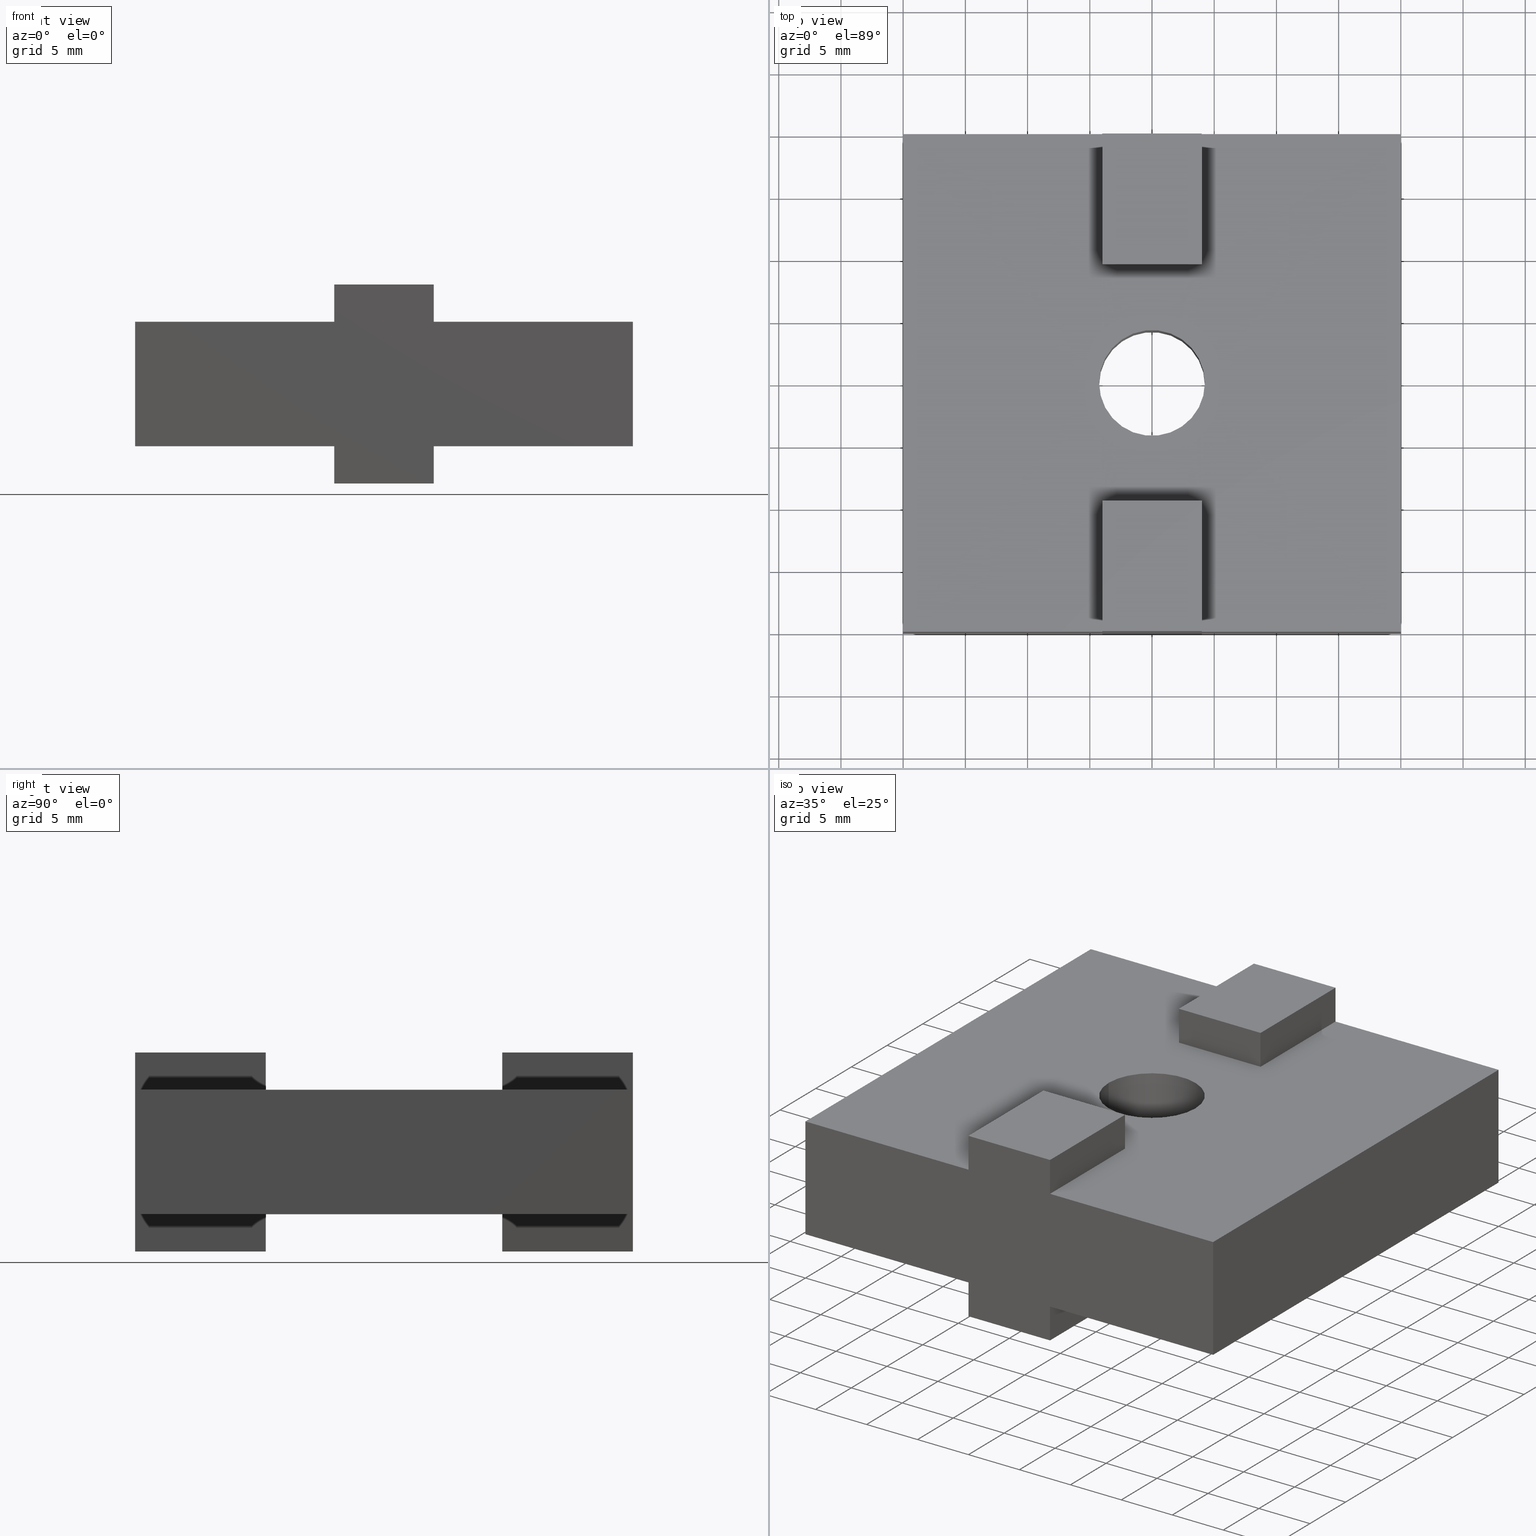
[diagram: canonical four-view strip — front | top / right | iso, engineering-drawing reading convention]
A machine part, canonical four-view strip (front | top / right | iso — engineering-drawing reading convention). The complete STEP part file that produces these views, byte-faithful:
ISO-10303-21;
HEADER;
/****************************************************************
 * Generated by software with PDE/Lib inside                    *
 * PDElib Version v4.4, created Mon 02/23/2004                  *
 * International Technegroup Inc. (www.iti-oh.com)              *
 ****************************************************************/
FILE_DESCRIPTION(('STEP AP203'),'2;1');
FILE_NAME('30.021.00.stp','2011-02-14T10:50:21',(''),(''),'2009.3.110','THINKDESIGN','');
FILE_SCHEMA(('CONFIG_CONTROL_DESIGN'));
ENDSEC;
DATA;
#2=CARTESIAN_POINT('',(-7.105427E-015,20.0,2.999999989999999));
#3=DIRECTION('',(0.0,0.0,1.0));
#4=DIRECTION('',(0.0,1.0,0.0));
#5=AXIS2_PLACEMENT_3D('',#2,#3,#4);
#6=CYLINDRICAL_SURFACE('',#5,4.250000000000000);
#7=CARTESIAN_POINT('',(-4.250000000000004,20.0,3.0));
#8=VERTEX_POINT('',#7);
#9=CARTESIAN_POINT('',(4.250000000000000,20.0,3.0));
#10=VERTEX_POINT('',#9);
#11=CARTESIAN_POINT('',(-3.552714E-015,20.0,3.0));
#12=DIRECTION('',(0.0,0.0,1.0));
#13=DIRECTION('',(1.0,0.0,0.0));
#14=AXIS2_PLACEMENT_3D('',#11,#12,#13);
#15=CIRCLE('',#14,4.250000000000000);
#16=EDGE_CURVE('',#8,#10,#15,.T.);
#17=ORIENTED_EDGE('',*,*,#16,.F.);
#18=CARTESIAN_POINT('',(-4.250000000000004,20.0,13.0));
#19=VERTEX_POINT('',#18);
#20=CARTESIAN_POINT('',(-4.250000000000004,20.0,3.0));
#21=DIRECTION('',(0.0,0.0,1.0));
#22=VECTOR('',#21,10.0);
#23=LINE('',#20,#22);
#24=EDGE_CURVE('',#8,#19,#23,.T.);
#25=ORIENTED_EDGE('',*,*,#24,.T.);
#26=CARTESIAN_POINT('',(4.250000000000000,20.0,13.0));
#27=VERTEX_POINT('',#26);
#28=CARTESIAN_POINT('',(-3.552714E-015,20.0,13.0));
#29=DIRECTION('',(0.0,0.0,1.0));
#30=DIRECTION('',(0.0,-1.0,0.0));
#31=AXIS2_PLACEMENT_3D('',#28,#29,#30);
#32=CIRCLE('',#31,4.250000000000000);
#33=EDGE_CURVE('',#19,#27,#32,.T.);
#34=ORIENTED_EDGE('',*,*,#33,.T.);
#35=CARTESIAN_POINT('',(4.250000000000000,20.0,3.0));
#36=DIRECTION('',(0.0,0.0,1.0));
#37=VECTOR('',#36,10.0);
#38=LINE('',#35,#37);
#39=EDGE_CURVE('',#10,#27,#38,.T.);
#40=ORIENTED_EDGE('',*,*,#39,.F.);
#41=EDGE_LOOP('',(#17,#25,#34,#40));
#42=FACE_OUTER_BOUND('',#41,.T.);
#43=ADVANCED_FACE('',(#42),#6,.F.);
#44=CARTESIAN_POINT('',(4.0,-0.524999999999999,-0.150000000000000));
#45=DIRECTION('',(-1.0,0.0,0.0));
#46=DIRECTION('',(0.0,0.0,1.0));
#47=AXIS2_PLACEMENT_3D('',#44,#45,#46);
#48=PLANE('',#47);
#49=CARTESIAN_POINT('',(4.0,10.500000000000014,0.0));
#50=VERTEX_POINT('',#49);
#51=CARTESIAN_POINT('',(4.0,0.0,0.0));
#52=VERTEX_POINT('',#51);
#53=CARTESIAN_POINT('',(4.0,10.500000000000014,0.0));
#54=DIRECTION('',(0.0,-1.0,0.0));
#55=VECTOR('',#54,10.500000000000014);
#56=LINE('',#53,#55);
#57=EDGE_CURVE('',#50,#52,#56,.T.);
#58=ORIENTED_EDGE('',*,*,#57,.F.);
#59=CARTESIAN_POINT('',(4.0,10.500000000000014,3.0));
#60=VERTEX_POINT('',#59);
#61=CARTESIAN_POINT('',(4.0,10.500000000000014,3.0));
#62=DIRECTION('',(0.0,0.0,-1.0));
#63=VECTOR('',#62,3.0);
#64=LINE('',#61,#63);
#65=EDGE_CURVE('',#60,#50,#64,.T.);
#66=ORIENTED_EDGE('',*,*,#65,.F.);
#67=CARTESIAN_POINT('',(4.0,0.0,3.0));
#68=VERTEX_POINT('',#67);
#69=CARTESIAN_POINT('',(4.0,10.500000000000014,3.0));
#70=DIRECTION('',(0.0,-1.0,0.0));
#71=VECTOR('',#70,10.500000000000014);
#72=LINE('',#69,#71);
#73=EDGE_CURVE('',#60,#68,#72,.T.);
#74=ORIENTED_EDGE('',*,*,#73,.T.);
#75=CARTESIAN_POINT('',(4.0,0.0,0.0));
#76=DIRECTION('',(0.0,0.0,1.0));
#77=VECTOR('',#76,3.0);
#78=LINE('',#75,#77);
#79=EDGE_CURVE('',#52,#68,#78,.T.);
#80=ORIENTED_EDGE('',*,*,#79,.F.);
#81=EDGE_LOOP('',(#58,#66,#74,#80));
#82=FACE_OUTER_BOUND('',#81,.T.);
#83=ADVANCED_FACE('',(#82),#48,.F.);
#84=CARTESIAN_POINT('',(-4.000000000000004,-0.524999999999999,3.150000000000000));
#85=DIRECTION('',(1.0,0.0,0.0));
#86=DIRECTION('',(0.0,0.0,-1.0));
#87=AXIS2_PLACEMENT_3D('',#84,#85,#86);
#88=PLANE('',#87);
#89=CARTESIAN_POINT('',(-4.000000000000004,0.0,3.0));
#90=VERTEX_POINT('',#89);
#91=CARTESIAN_POINT('',(-4.000000000000004,10.500000000000014,3.0));
#92=VERTEX_POINT('',#91);
#93=CARTESIAN_POINT('',(-4.000000000000004,0.0,3.0));
#94=DIRECTION('',(0.0,1.0,0.0));
#95=VECTOR('',#94,10.500000000000014);
#96=LINE('',#93,#95);
#97=EDGE_CURVE('',#90,#92,#96,.T.);
#98=ORIENTED_EDGE('',*,*,#97,.T.);
#99=CARTESIAN_POINT('',(-4.000000000000004,10.500000000000014,0.0));
#100=VERTEX_POINT('',#99);
#101=CARTESIAN_POINT('',(-4.000000000000004,10.500000000000014,3.0));
#102=DIRECTION('',(0.0,0.0,-1.0));
#103=VECTOR('',#102,3.0);
#104=LINE('',#101,#103);
#105=EDGE_CURVE('',#92,#100,#104,.T.);
#106=ORIENTED_EDGE('',*,*,#105,.T.);
#107=CARTESIAN_POINT('',(-4.000000000000004,0.0,0.0));
#108=VERTEX_POINT('',#107);
#109=CARTESIAN_POINT('',(-4.000000000000004,0.0,0.0));
#110=DIRECTION('',(0.0,1.0,0.0));
#111=VECTOR('',#110,10.500000000000014);
#112=LINE('',#109,#111);
#113=EDGE_CURVE('',#108,#100,#112,.T.);
#114=ORIENTED_EDGE('',*,*,#113,.F.);
#115=CARTESIAN_POINT('',(-4.000000000000004,0.0,0.0));
#116=DIRECTION('',(0.0,0.0,1.0));
#117=VECTOR('',#116,3.0);
#118=LINE('',#115,#117);
#119=EDGE_CURVE('',#108,#90,#118,.T.);
#120=ORIENTED_EDGE('',*,*,#119,.T.);
#121=EDGE_LOOP('',(#98,#106,#114,#120));
#122=FACE_OUTER_BOUND('',#121,.T.);
#123=ADVANCED_FACE('',(#122),#88,.F.);
#124=CARTESIAN_POINT('',(4.399999999999999,-0.524999999999999,0.0));
#125=DIRECTION('',(0.0,0.0,-1.0));
#126=DIRECTION('',(-1.0,0.0,0.0));
#127=AXIS2_PLACEMENT_3D('',#124,#125,#126);
#128=PLANE('',#127);
#129=CARTESIAN_POINT('',(4.0,10.500000000000014,0.0));
#130=DIRECTION('',(-1.0,0.0,0.0));
#131=VECTOR('',#130,8.000000000000004);
#132=LINE('',#129,#131);
#133=EDGE_CURVE('',#50,#100,#132,.T.);
#134=ORIENTED_EDGE('',*,*,#133,.F.);
#135=ORIENTED_EDGE('',*,*,#57,.T.);
#136=CARTESIAN_POINT('',(4.0,0.0,0.0));
#137=DIRECTION('',(-1.0,0.0,0.0));
#138=VECTOR('',#137,8.000000000000004);
#139=LINE('',#136,#138);
#140=EDGE_CURVE('',#52,#108,#139,.T.);
#141=ORIENTED_EDGE('',*,*,#140,.T.);
#142=ORIENTED_EDGE('',*,*,#113,.T.);
#143=EDGE_LOOP('',(#134,#135,#141,#142));
#144=FACE_OUTER_BOUND('',#143,.T.);
#145=ADVANCED_FACE('',(#144),#128,.T.);
#146=CARTESIAN_POINT('',(4.0,-0.524999999999999,12.849999999999996));
#147=DIRECTION('',(-1.0,0.0,0.0));
#148=DIRECTION('',(0.0,0.0,1.0));
#149=AXIS2_PLACEMENT_3D('',#146,#147,#148);
#150=PLANE('',#149);
#151=CARTESIAN_POINT('',(4.0,0.0,13.0));
#152=VERTEX_POINT('',#151);
#153=CARTESIAN_POINT('',(4.0,10.500000000000014,12.999999999999996));
#154=VERTEX_POINT('',#153);
#155=CARTESIAN_POINT('',(4.0,0.0,13.0));
#156=DIRECTION('',(0.0,1.0,0.0));
#157=VECTOR('',#156,10.500000000000014);
#158=LINE('',#155,#157);
#159=EDGE_CURVE('',#152,#154,#158,.T.);
#160=ORIENTED_EDGE('',*,*,#159,.T.);
#161=CARTESIAN_POINT('',(4.0,10.500000000000014,16.0));
#162=VERTEX_POINT('',#161);
#163=CARTESIAN_POINT('',(4.0,10.500000000000014,12.999999999999996));
#164=DIRECTION('',(0.0,0.0,1.0));
#165=VECTOR('',#164,3.000000000000004);
#166=LINE('',#163,#165);
#167=EDGE_CURVE('',#154,#162,#166,.T.);
#168=ORIENTED_EDGE('',*,*,#167,.T.);
#169=CARTESIAN_POINT('',(4.0,0.0,16.000000000000007));
#170=VERTEX_POINT('',#169);
#171=CARTESIAN_POINT('',(4.0,0.0,16.000000000000007));
#172=DIRECTION('',(0.0,1.0,0.0));
#173=VECTOR('',#172,10.500000000000014);
#174=LINE('',#171,#173);
#175=EDGE_CURVE('',#170,#162,#174,.T.);
#176=ORIENTED_EDGE('',*,*,#175,.F.);
#177=CARTESIAN_POINT('',(4.0,0.0,16.000000000000007));
#178=DIRECTION('',(0.0,0.0,-1.0));
#179=VECTOR('',#178,3.000000000000005);
#180=LINE('',#177,#179);
#181=EDGE_CURVE('',#170,#152,#180,.T.);
#182=ORIENTED_EDGE('',*,*,#181,.T.);
#183=EDGE_LOOP('',(#160,#168,#176,#182));
#184=FACE_OUTER_BOUND('',#183,.T.);
#185=ADVANCED_FACE('',(#184),#150,.F.);
#186=CARTESIAN_POINT('',(-4.000000000000004,-0.524999999999999,16.150000000000006));
#187=DIRECTION('',(1.0,0.0,0.0));
#188=DIRECTION('',(0.0,0.0,-1.0));
#189=AXIS2_PLACEMENT_3D('',#186,#187,#188);
#190=PLANE('',#189);
#191=CARTESIAN_POINT('',(-4.000000000000004,10.500000000000014,16.0));
#192=VERTEX_POINT('',#191);
#193=CARTESIAN_POINT('',(-4.000000000000004,0.0,16.000000000000007));
#194=VERTEX_POINT('',#193);
#195=CARTESIAN_POINT('',(-4.000000000000004,10.500000000000014,16.000000000000007));
#196=DIRECTION('',(0.0,-1.0,0.0));
#197=VECTOR('',#196,10.500000000000014);
#198=LINE('',#195,#197);
#199=EDGE_CURVE('',#192,#194,#198,.T.);
#200=ORIENTED_EDGE('',*,*,#199,.F.);
#201=CARTESIAN_POINT('',(-4.000000000000004,10.500000000000014,12.999999999999996));
#202=VERTEX_POINT('',#201);
#203=CARTESIAN_POINT('',(-4.000000000000004,10.500000000000014,12.999999999999996));
#204=DIRECTION('',(0.0,0.0,1.0));
#205=VECTOR('',#204,3.000000000000004);
#206=LINE('',#203,#205);
#207=EDGE_CURVE('',#202,#192,#206,.T.);
#208=ORIENTED_EDGE('',*,*,#207,.F.);
#209=CARTESIAN_POINT('',(-4.000000000000004,0.0,13.0));
#210=VERTEX_POINT('',#209);
#211=CARTESIAN_POINT('',(-4.000000000000004,10.500000000000014,13.0));
#212=DIRECTION('',(0.0,-1.0,0.0));
#213=VECTOR('',#212,10.500000000000014);
#214=LINE('',#211,#213);
#215=EDGE_CURVE('',#202,#210,#214,.T.);
#216=ORIENTED_EDGE('',*,*,#215,.T.);
#217=CARTESIAN_POINT('',(-4.000000000000004,0.0,16.000000000000007));
#218=DIRECTION('',(0.0,0.0,-1.0));
#219=VECTOR('',#218,3.000000000000005);
#220=LINE('',#217,#219);
#221=EDGE_CURVE('',#194,#210,#220,.T.);
#222=ORIENTED_EDGE('',*,*,#221,.F.);
#223=EDGE_LOOP('',(#200,#208,#216,#222));
#224=FACE_OUTER_BOUND('',#223,.T.);
#225=ADVANCED_FACE('',(#224),#190,.F.);
#226=CARTESIAN_POINT('',(-4.400000000000002,-0.524999999999999,16.000000000000007));
#227=DIRECTION('',(0.0,0.0,1.0));
#228=DIRECTION('',(1.0,0.0,0.0));
#229=AXIS2_PLACEMENT_3D('',#226,#227,#228);
#230=PLANE('',#229);
#231=CARTESIAN_POINT('',(-4.000000000000004,10.500000000000014,16.0));
#232=DIRECTION('',(1.0,0.0,0.0));
#233=VECTOR('',#232,8.000000000000004);
#234=LINE('',#231,#233);
#235=EDGE_CURVE('',#192,#162,#234,.T.);
#236=ORIENTED_EDGE('',*,*,#235,.F.);
#237=ORIENTED_EDGE('',*,*,#199,.T.);
#238=CARTESIAN_POINT('',(-4.000000000000004,0.0,16.000000000000007));
#239=DIRECTION('',(1.0,0.0,0.0));
#240=VECTOR('',#239,8.000000000000004);
#241=LINE('',#238,#240);
#242=EDGE_CURVE('',#194,#170,#241,.T.);
#243=ORIENTED_EDGE('',*,*,#242,.T.);
#244=ORIENTED_EDGE('',*,*,#175,.T.);
#245=EDGE_LOOP('',(#236,#237,#243,#244));
#246=FACE_OUTER_BOUND('',#245,.T.);
#247=ADVANCED_FACE('',(#246),#230,.T.);
#248=CARTESIAN_POINT('',(-22.000000000000021,-2.0,3.0));
#249=DIRECTION('',(0.0,0.0,1.0));
#250=DIRECTION('',(1.0,0.0,0.0));
#251=AXIS2_PLACEMENT_3D('',#248,#249,#250);
#252=PLANE('',#251);
#253=ORIENTED_EDGE('',*,*,#97,.F.);
#254=CARTESIAN_POINT('',(-20.000000000000021,0.0,3.0));
#255=VERTEX_POINT('',#254);
#256=CARTESIAN_POINT('',(-20.000000000000021,0.0,3.0));
#257=DIRECTION('',(1.0,0.0,0.0));
#258=VECTOR('',#257,16.000000000000014);
#259=LINE('',#256,#258);
#260=EDGE_CURVE('',#255,#90,#259,.T.);
#261=ORIENTED_EDGE('',*,*,#260,.F.);
#262=CARTESIAN_POINT('',(-20.000000000000021,40.0,3.0));
#263=VERTEX_POINT('',#262);
#264=CARTESIAN_POINT('',(-20.000000000000021,40.0,3.0));
#265=DIRECTION('',(0.0,-1.0,0.0));
#266=VECTOR('',#265,40.0);
#267=LINE('',#264,#266);
#268=EDGE_CURVE('',#263,#255,#267,.T.);
#269=ORIENTED_EDGE('',*,*,#268,.F.);
#270=CARTESIAN_POINT('',(-4.000000000000004,40.0,3.0));
#271=VERTEX_POINT('',#270);
#272=CARTESIAN_POINT('',(-4.000000000000004,40.0,3.0));
#273=DIRECTION('',(-1.0,0.0,0.0));
#274=VECTOR('',#273,16.000000000000014);
#275=LINE('',#272,#274);
#276=EDGE_CURVE('',#271,#263,#275,.T.);
#277=ORIENTED_EDGE('',*,*,#276,.F.);
#278=CARTESIAN_POINT('',(-4.000000000000004,29.500000000000000,3.0));
#279=VERTEX_POINT('',#278);
#280=CARTESIAN_POINT('',(-4.000000000000004,29.500000000000000,3.0));
#281=DIRECTION('',(0.0,1.0,0.0));
#282=VECTOR('',#281,10.500000000000000);
#283=LINE('',#280,#282);
#284=EDGE_CURVE('',#279,#271,#283,.T.);
#285=ORIENTED_EDGE('',*,*,#284,.F.);
#286=CARTESIAN_POINT('',(4.0,29.500000000000000,3.0));
#287=VERTEX_POINT('',#286);
#288=CARTESIAN_POINT('',(-4.000000000000004,29.500000000000000,3.0));
#289=DIRECTION('',(1.0,0.0,0.0));
#290=VECTOR('',#289,8.000000000000004);
#291=LINE('',#288,#290);
#292=EDGE_CURVE('',#279,#287,#291,.T.);
#293=ORIENTED_EDGE('',*,*,#292,.T.);
#294=CARTESIAN_POINT('',(4.0,40.0,3.0));
#295=VERTEX_POINT('',#294);
#296=CARTESIAN_POINT('',(4.0,40.0,3.0));
#297=DIRECTION('',(0.0,-1.0,0.0));
#298=VECTOR('',#297,10.499999999999993);
#299=LINE('',#296,#298);
#300=EDGE_CURVE('',#295,#287,#299,.T.);
#301=ORIENTED_EDGE('',*,*,#300,.F.);
#302=CARTESIAN_POINT('',(19.999999999999993,40.0,3.0));
#303=VERTEX_POINT('',#302);
#304=CARTESIAN_POINT('',(19.999999999999993,40.0,3.0));
#305=DIRECTION('',(-1.0,0.0,0.0));
#306=VECTOR('',#305,15.999999999999993);
#307=LINE('',#304,#306);
#308=EDGE_CURVE('',#303,#295,#307,.T.);
#309=ORIENTED_EDGE('',*,*,#308,.F.);
#310=CARTESIAN_POINT('',(19.999999999999993,0.0,3.0));
#311=VERTEX_POINT('',#310);
#312=CARTESIAN_POINT('',(19.999999999999993,0.0,3.0));
#313=DIRECTION('',(0.0,1.0,0.0));
#314=VECTOR('',#313,40.0);
#315=LINE('',#312,#314);
#316=EDGE_CURVE('',#311,#303,#315,.T.);
#317=ORIENTED_EDGE('',*,*,#316,.F.);
#318=CARTESIAN_POINT('',(4.0,0.0,3.0));
#319=DIRECTION('',(1.0,0.0,0.0));
#320=VECTOR('',#319,15.999999999999993);
#321=LINE('',#318,#320);
#322=EDGE_CURVE('',#68,#311,#321,.T.);
#323=ORIENTED_EDGE('',*,*,#322,.F.);
#324=ORIENTED_EDGE('',*,*,#73,.F.);
#325=CARTESIAN_POINT('',(4.0,10.500000000000014,3.0));
#326=DIRECTION('',(-1.0,0.0,0.0));
#327=VECTOR('',#326,8.000000000000004);
#328=LINE('',#325,#327);
#329=EDGE_CURVE('',#60,#92,#328,.T.);
#330=ORIENTED_EDGE('',*,*,#329,.T.);
#331=EDGE_LOOP('',(#253,#261,#269,#277,#285,#293,#301,#309,#317,#323,#324,#330));
#332=FACE_OUTER_BOUND('',#331,.T.);
#333=CARTESIAN_POINT('',(-3.552714E-015,20.0,3.0));
#334=DIRECTION('',(0.0,0.0,1.0));
#335=DIRECTION('',(1.0,0.0,0.0));
#336=AXIS2_PLACEMENT_3D('',#333,#334,#335);
#337=CIRCLE('',#336,4.250000000000000);
#338=EDGE_CURVE('',#10,#8,#337,.T.);
#339=ORIENTED_EDGE('',*,*,#338,.T.);
#340=ORIENTED_EDGE('',*,*,#16,.T.);
#341=EDGE_LOOP('',(#339,#340));
#342=FACE_BOUND('',#341,.T.);
#343=ADVANCED_FACE('',(#332,#342),#252,.F.);
#344=CARTESIAN_POINT('',(-20.000000000000021,-2.0,13.500000000000000));
#345=DIRECTION('',(1.0,0.0,0.0));
#346=DIRECTION('',(0.0,0.0,-1.0));
#347=AXIS2_PLACEMENT_3D('',#344,#345,#346);
#348=PLANE('',#347);
#349=ORIENTED_EDGE('',*,*,#268,.T.);
#350=CARTESIAN_POINT('',(-20.000000000000021,0.0,13.0));
#351=VERTEX_POINT('',#350);
#352=CARTESIAN_POINT('',(-20.000000000000021,0.0,13.0));
#353=DIRECTION('',(0.0,0.0,-1.0));
#354=VECTOR('',#353,10.0);
#355=LINE('',#352,#354);
#356=EDGE_CURVE('',#351,#255,#355,.T.);
#357=ORIENTED_EDGE('',*,*,#356,.F.);
#358=CARTESIAN_POINT('',(-20.000000000000021,40.0,13.0));
#359=VERTEX_POINT('',#358);
#360=CARTESIAN_POINT('',(-20.000000000000021,40.0,13.0));
#361=DIRECTION('',(0.0,-1.0,0.0));
#362=VECTOR('',#361,40.0);
#363=LINE('',#360,#362);
#364=EDGE_CURVE('',#359,#351,#363,.T.);
#365=ORIENTED_EDGE('',*,*,#364,.F.);
#366=CARTESIAN_POINT('',(-20.000000000000021,40.0,13.0));
#367=DIRECTION('',(0.0,0.0,-1.0));
#368=VECTOR('',#367,10.0);
#369=LINE('',#366,#368);
#370=EDGE_CURVE('',#359,#263,#369,.T.);
#371=ORIENTED_EDGE('',*,*,#370,.T.);
#372=EDGE_LOOP('',(#349,#357,#365,#371));
#373=FACE_OUTER_BOUND('',#372,.T.);
#374=ADVANCED_FACE('',(#373),#348,.F.);
#375=CARTESIAN_POINT('',(-22.000000000000021,0.0,-0.800000000000001));
#376=DIRECTION('',(0.0,1.0,0.0));
#377=DIRECTION('',(0.0,0.0,1.0));
#378=AXIS2_PLACEMENT_3D('',#375,#376,#377);
#379=PLANE('',#378);
#380=ORIENTED_EDGE('',*,*,#260,.T.);
#381=ORIENTED_EDGE('',*,*,#119,.F.);
#382=ORIENTED_EDGE('',*,*,#140,.F.);
#383=ORIENTED_EDGE('',*,*,#79,.T.);
#384=ORIENTED_EDGE('',*,*,#322,.T.);
#385=CARTESIAN_POINT('',(19.999999999999993,0.0,13.0));
#386=VERTEX_POINT('',#385);
#387=CARTESIAN_POINT('',(19.999999999999993,0.0,13.0));
#388=DIRECTION('',(0.0,0.0,-1.0));
#389=VECTOR('',#388,10.0);
#390=LINE('',#387,#389);
#391=EDGE_CURVE('',#386,#311,#390,.T.);
#392=ORIENTED_EDGE('',*,*,#391,.F.);
#393=CARTESIAN_POINT('',(4.0,0.0,13.0));
#394=DIRECTION('',(1.0,0.0,0.0));
#395=VECTOR('',#394,15.999999999999993);
#396=LINE('',#393,#395);
#397=EDGE_CURVE('',#152,#386,#396,.T.);
#398=ORIENTED_EDGE('',*,*,#397,.F.);
#399=ORIENTED_EDGE('',*,*,#181,.F.);
#400=ORIENTED_EDGE('',*,*,#242,.F.);
#401=ORIENTED_EDGE('',*,*,#221,.T.);
#402=CARTESIAN_POINT('',(-20.000000000000021,0.0,13.0));
#403=DIRECTION('',(1.0,0.0,0.0));
#404=VECTOR('',#403,16.000000000000014);
#405=LINE('',#402,#404);
#406=EDGE_CURVE('',#351,#210,#405,.T.);
#407=ORIENTED_EDGE('',*,*,#406,.F.);
#408=ORIENTED_EDGE('',*,*,#356,.T.);
#409=EDGE_LOOP('',(#380,#381,#382,#383,#384,#392,#398,#399,#400,#401,#407,#408));
#410=FACE_OUTER_BOUND('',#409,.T.);
#411=ADVANCED_FACE('',(#410),#379,.F.);
#412=CARTESIAN_POINT('',(19.999999999999993,-2.0,2.500000000000000));
#413=DIRECTION('',(-1.0,0.0,0.0));
#414=DIRECTION('',(0.0,0.0,1.0));
#415=AXIS2_PLACEMENT_3D('',#412,#413,#414);
#416=PLANE('',#415);
#417=ORIENTED_EDGE('',*,*,#316,.T.);
#418=CARTESIAN_POINT('',(19.999999999999993,40.0,13.0));
#419=VERTEX_POINT('',#418);
#420=CARTESIAN_POINT('',(19.999999999999993,40.0,13.0));
#421=DIRECTION('',(0.0,0.0,-1.0));
#422=VECTOR('',#421,10.0);
#423=LINE('',#420,#422);
#424=EDGE_CURVE('',#419,#303,#423,.T.);
#425=ORIENTED_EDGE('',*,*,#424,.F.);
#426=CARTESIAN_POINT('',(19.999999999999993,0.0,13.0));
#427=DIRECTION('',(0.0,1.0,0.0));
#428=VECTOR('',#427,40.0);
#429=LINE('',#426,#428);
#430=EDGE_CURVE('',#386,#419,#429,.T.);
#431=ORIENTED_EDGE('',*,*,#430,.F.);
#432=ORIENTED_EDGE('',*,*,#391,.T.);
#433=EDGE_LOOP('',(#417,#425,#431,#432));
#434=FACE_OUTER_BOUND('',#433,.T.);
#435=ADVANCED_FACE('',(#434),#416,.F.);
#436=CARTESIAN_POINT('',(-22.000000000000021,40.0,16.800000000000004));
#437=DIRECTION('',(0.0,-1.0,0.0));
#438=DIRECTION('',(0.0,0.0,-1.0));
#439=AXIS2_PLACEMENT_3D('',#436,#437,#438);
#440=PLANE('',#439);
#441=ORIENTED_EDGE('',*,*,#308,.T.);
#442=CARTESIAN_POINT('',(4.0,40.0,0.0));
#443=VERTEX_POINT('',#442);
#444=CARTESIAN_POINT('',(4.0,40.0,0.0));
#445=DIRECTION('',(0.0,0.0,1.0));
#446=VECTOR('',#445,3.0);
#447=LINE('',#444,#446);
#448=EDGE_CURVE('',#443,#295,#447,.T.);
#449=ORIENTED_EDGE('',*,*,#448,.F.);
#450=CARTESIAN_POINT('',(-4.000000000000004,40.0,0.0));
#451=VERTEX_POINT('',#450);
#452=CARTESIAN_POINT('',(-4.000000000000004,40.0,0.0));
#453=DIRECTION('',(1.0,0.0,0.0));
#454=VECTOR('',#453,8.000000000000004);
#455=LINE('',#452,#454);
#456=EDGE_CURVE('',#451,#443,#455,.T.);
#457=ORIENTED_EDGE('',*,*,#456,.F.);
#458=CARTESIAN_POINT('',(-4.000000000000004,40.0,0.0));
#459=DIRECTION('',(0.0,0.0,1.0));
#460=VECTOR('',#459,3.0);
#461=LINE('',#458,#460);
#462=EDGE_CURVE('',#451,#271,#461,.T.);
#463=ORIENTED_EDGE('',*,*,#462,.T.);
#464=ORIENTED_EDGE('',*,*,#276,.T.);
#465=ORIENTED_EDGE('',*,*,#370,.F.);
#466=CARTESIAN_POINT('',(-4.000000000000004,40.0,13.0));
#467=VERTEX_POINT('',#466);
#468=CARTESIAN_POINT('',(-4.000000000000004,40.0,13.0));
#469=DIRECTION('',(-1.0,0.0,0.0));
#470=VECTOR('',#469,16.000000000000014);
#471=LINE('',#468,#470);
#472=EDGE_CURVE('',#467,#359,#471,.T.);
#473=ORIENTED_EDGE('',*,*,#472,.F.);
#474=CARTESIAN_POINT('',(-4.000000000000004,40.0,16.000000000000007));
#475=VERTEX_POINT('',#474);
#476=CARTESIAN_POINT('',(-4.000000000000004,40.0,16.000000000000007));
#477=DIRECTION('',(0.0,0.0,-1.0));
#478=VECTOR('',#477,3.000000000000005);
#479=LINE('',#476,#478);
#480=EDGE_CURVE('',#475,#467,#479,.T.);
#481=ORIENTED_EDGE('',*,*,#480,.F.);
#482=CARTESIAN_POINT('',(4.0,40.0,16.000000000000007));
#483=VERTEX_POINT('',#482);
#484=CARTESIAN_POINT('',(4.0,40.0,16.000000000000007));
#485=DIRECTION('',(-1.0,0.0,0.0));
#486=VECTOR('',#485,8.000000000000004);
#487=LINE('',#484,#486);
#488=EDGE_CURVE('',#483,#475,#487,.T.);
#489=ORIENTED_EDGE('',*,*,#488,.F.);
#490=CARTESIAN_POINT('',(4.0,40.0,13.0));
#491=VERTEX_POINT('',#490);
#492=CARTESIAN_POINT('',(4.0,40.0,16.000000000000007));
#493=DIRECTION('',(0.0,0.0,-1.0));
#494=VECTOR('',#493,3.000000000000005);
#495=LINE('',#492,#494);
#496=EDGE_CURVE('',#483,#491,#495,.T.);
#497=ORIENTED_EDGE('',*,*,#496,.T.);
#498=CARTESIAN_POINT('',(19.999999999999993,40.0,13.0));
#499=DIRECTION('',(-1.0,0.0,0.0));
#500=VECTOR('',#499,15.999999999999993);
#501=LINE('',#498,#500);
#502=EDGE_CURVE('',#419,#491,#501,.T.);
#503=ORIENTED_EDGE('',*,*,#502,.F.);
#504=ORIENTED_EDGE('',*,*,#424,.T.);
#505=EDGE_LOOP('',(#441,#449,#457,#463,#464,#465,#473,#481,#489,#497,#503,#504));
#506=FACE_OUTER_BOUND('',#505,.T.);
#507=ADVANCED_FACE('',(#506),#440,.F.);
#508=CARTESIAN_POINT('',(-22.000000000000021,-2.0,13.0));
#509=DIRECTION('',(0.0,0.0,1.0));
#510=DIRECTION('',(1.0,0.0,0.0));
#511=AXIS2_PLACEMENT_3D('',#508,#509,#510);
#512=PLANE('',#511);
#513=ORIENTED_EDGE('',*,*,#159,.F.);
#514=ORIENTED_EDGE('',*,*,#397,.T.);
#515=ORIENTED_EDGE('',*,*,#430,.T.);
#516=ORIENTED_EDGE('',*,*,#502,.T.);
#517=CARTESIAN_POINT('',(4.0,29.500000000000000,12.999999999999996));
#518=VERTEX_POINT('',#517);
#519=CARTESIAN_POINT('',(4.0,29.500000000000000,13.0));
#520=DIRECTION('',(0.0,1.0,0.0));
#521=VECTOR('',#520,10.500000000000000);
#522=LINE('',#519,#521);
#523=EDGE_CURVE('',#518,#491,#522,.T.);
#524=ORIENTED_EDGE('',*,*,#523,.F.);
#525=CARTESIAN_POINT('',(-4.000000000000004,29.500000000000000,12.999999999999996));
#526=VERTEX_POINT('',#525);
#527=CARTESIAN_POINT('',(4.0,29.500000000000000,12.999999999999996));
#528=DIRECTION('',(-1.0,0.0,0.0));
#529=VECTOR('',#528,8.000000000000004);
#530=LINE('',#527,#529);
#531=EDGE_CURVE('',#518,#526,#530,.T.);
#532=ORIENTED_EDGE('',*,*,#531,.T.);
#533=CARTESIAN_POINT('',(-4.000000000000004,40.0,13.0));
#534=DIRECTION('',(0.0,-1.0,0.0));
#535=VECTOR('',#534,10.500000000000000);
#536=LINE('',#533,#535);
#537=EDGE_CURVE('',#467,#526,#536,.T.);
#538=ORIENTED_EDGE('',*,*,#537,.F.);
#539=ORIENTED_EDGE('',*,*,#472,.T.);
#540=ORIENTED_EDGE('',*,*,#364,.T.);
#541=ORIENTED_EDGE('',*,*,#406,.T.);
#542=ORIENTED_EDGE('',*,*,#215,.F.);
#543=CARTESIAN_POINT('',(-4.000000000000004,10.500000000000014,12.999999999999996));
#544=DIRECTION('',(1.0,0.0,0.0));
#545=VECTOR('',#544,8.000000000000004);
#546=LINE('',#543,#545);
#547=EDGE_CURVE('',#202,#154,#546,.T.);
#548=ORIENTED_EDGE('',*,*,#547,.T.);
#549=EDGE_LOOP('',(#513,#514,#515,#516,#524,#532,#538,#539,#540,#541,#542,#548));
#550=FACE_OUTER_BOUND('',#549,.T.);
#551=CARTESIAN_POINT('',(-3.552714E-015,20.0,13.0));
#552=DIRECTION('',(0.0,0.0,1.0));
#553=DIRECTION('',(0.0,-1.0,0.0));
#554=AXIS2_PLACEMENT_3D('',#551,#552,#553);
#555=CIRCLE('',#554,4.250000000000000);
#556=EDGE_CURVE('',#27,#19,#555,.T.);
#557=ORIENTED_EDGE('',*,*,#556,.F.);
#558=ORIENTED_EDGE('',*,*,#33,.F.);
#559=EDGE_LOOP('',(#557,#558));
#560=FACE_BOUND('',#559,.T.);
#561=ADVANCED_FACE('',(#550,#560),#512,.T.);
#562=CARTESIAN_POINT('',(4.0,28.974999999999994,12.849999999999996));
#563=DIRECTION('',(-1.0,0.0,0.0));
#564=DIRECTION('',(0.0,0.0,1.0));
#565=AXIS2_PLACEMENT_3D('',#562,#563,#564);
#566=PLANE('',#565);
#567=CARTESIAN_POINT('',(4.0,29.500000000000000,16.000000000000007));
#568=VERTEX_POINT('',#567);
#569=CARTESIAN_POINT('',(4.0,29.500000000000000,16.000000000000007));
#570=DIRECTION('',(0.0,1.0,0.0));
#571=VECTOR('',#570,10.500000000000000);
#572=LINE('',#569,#571);
#573=EDGE_CURVE('',#568,#483,#572,.T.);
#574=ORIENTED_EDGE('',*,*,#573,.F.);
#575=CARTESIAN_POINT('',(4.0,29.500000000000000,12.999999999999996));
#576=DIRECTION('',(0.0,0.0,1.0));
#577=VECTOR('',#576,3.000000000000011);
#578=LINE('',#575,#577);
#579=EDGE_CURVE('',#518,#568,#578,.T.);
#580=ORIENTED_EDGE('',*,*,#579,.F.);
#581=ORIENTED_EDGE('',*,*,#523,.T.);
#582=ORIENTED_EDGE('',*,*,#496,.F.);
#583=EDGE_LOOP('',(#574,#580,#581,#582));
#584=FACE_OUTER_BOUND('',#583,.T.);
#585=ADVANCED_FACE('',(#584),#566,.F.);
#586=CARTESIAN_POINT('',(-4.000000000000004,28.974999999999994,16.150000000000006));
#587=DIRECTION('',(1.0,0.0,0.0));
#588=DIRECTION('',(0.0,0.0,-1.0));
#589=AXIS2_PLACEMENT_3D('',#586,#587,#588);
#590=PLANE('',#589);
#591=ORIENTED_EDGE('',*,*,#537,.T.);
#592=CARTESIAN_POINT('',(-4.000000000000004,29.500000000000000,16.0));
#593=VERTEX_POINT('',#592);
#594=CARTESIAN_POINT('',(-4.000000000000004,29.500000000000000,12.999999999999996));
#595=DIRECTION('',(0.0,0.0,1.0));
#596=VECTOR('',#595,3.000000000000004);
#597=LINE('',#594,#596);
#598=EDGE_CURVE('',#526,#593,#597,.T.);
#599=ORIENTED_EDGE('',*,*,#598,.T.);
#600=CARTESIAN_POINT('',(-4.000000000000004,40.0,16.000000000000007));
#601=DIRECTION('',(0.0,-1.0,0.0));
#602=VECTOR('',#601,10.500000000000000);
#603=LINE('',#600,#602);
#604=EDGE_CURVE('',#475,#593,#603,.T.);
#605=ORIENTED_EDGE('',*,*,#604,.F.);
#606=ORIENTED_EDGE('',*,*,#480,.T.);
#607=EDGE_LOOP('',(#591,#599,#605,#606));
#608=FACE_OUTER_BOUND('',#607,.T.);
#609=ADVANCED_FACE('',(#608),#590,.F.);
#610=CARTESIAN_POINT('',(-4.400000000000002,28.974999999999994,16.000000000000007));
#611=DIRECTION('',(0.0,0.0,1.0));
#612=DIRECTION('',(1.0,0.0,0.0));
#613=AXIS2_PLACEMENT_3D('',#610,#611,#612);
#614=PLANE('',#613);
#615=CARTESIAN_POINT('',(4.0,29.500000000000000,16.0));
#616=DIRECTION('',(-1.0,0.0,0.0));
#617=VECTOR('',#616,8.000000000000004);
#618=LINE('',#615,#617);
#619=EDGE_CURVE('',#568,#593,#618,.T.);
#620=ORIENTED_EDGE('',*,*,#619,.F.);
#621=ORIENTED_EDGE('',*,*,#573,.T.);
#622=ORIENTED_EDGE('',*,*,#488,.T.);
#623=ORIENTED_EDGE('',*,*,#604,.T.);
#624=EDGE_LOOP('',(#620,#621,#622,#623));
#625=FACE_OUTER_BOUND('',#624,.T.);
#626=ADVANCED_FACE('',(#625),#614,.T.);
#627=CARTESIAN_POINT('',(4.0,28.974999999999994,-0.150000000000000));
#628=DIRECTION('',(-1.0,0.0,0.0));
#629=DIRECTION('',(0.0,0.0,1.0));
#630=AXIS2_PLACEMENT_3D('',#627,#628,#629);
#631=PLANE('',#630);
#632=ORIENTED_EDGE('',*,*,#300,.T.);
#633=CARTESIAN_POINT('',(4.0,29.500000000000000,0.0));
#634=VERTEX_POINT('',#633);
#635=CARTESIAN_POINT('',(4.0,29.500000000000000,3.0));
#636=DIRECTION('',(0.0,0.0,-1.0));
#637=VECTOR('',#636,3.0);
#638=LINE('',#635,#637);
#639=EDGE_CURVE('',#287,#634,#638,.T.);
#640=ORIENTED_EDGE('',*,*,#639,.T.);
#641=CARTESIAN_POINT('',(4.0,40.0,0.0));
#642=DIRECTION('',(0.0,-1.0,0.0));
#643=VECTOR('',#642,10.499999999999993);
#644=LINE('',#641,#643);
#645=EDGE_CURVE('',#443,#634,#644,.T.);
#646=ORIENTED_EDGE('',*,*,#645,.F.);
#647=ORIENTED_EDGE('',*,*,#448,.T.);
#648=EDGE_LOOP('',(#632,#640,#646,#647));
#649=FACE_OUTER_BOUND('',#648,.T.);
#650=ADVANCED_FACE('',(#649),#631,.F.);
#651=CARTESIAN_POINT('',(-4.000000000000004,28.974999999999994,3.150000000000000));
#652=DIRECTION('',(1.0,0.0,0.0));
#653=DIRECTION('',(0.0,0.0,-1.0));
#654=AXIS2_PLACEMENT_3D('',#651,#652,#653);
#655=PLANE('',#654);
#656=CARTESIAN_POINT('',(-4.000000000000004,29.500000000000000,0.0));
#657=VERTEX_POINT('',#656);
#658=CARTESIAN_POINT('',(-4.000000000000004,29.500000000000000,0.0));
#659=DIRECTION('',(0.0,1.0,0.0));
#660=VECTOR('',#659,10.500000000000000);
#661=LINE('',#658,#660);
#662=EDGE_CURVE('',#657,#451,#661,.T.);
#663=ORIENTED_EDGE('',*,*,#662,.F.);
#664=CARTESIAN_POINT('',(-4.000000000000004,29.500000000000000,3.0));
#665=DIRECTION('',(0.0,0.0,-1.0));
#666=VECTOR('',#665,3.000000000000001);
#667=LINE('',#664,#666);
#668=EDGE_CURVE('',#279,#657,#667,.T.);
#669=ORIENTED_EDGE('',*,*,#668,.F.);
#670=ORIENTED_EDGE('',*,*,#284,.T.);
#671=ORIENTED_EDGE('',*,*,#462,.F.);
#672=EDGE_LOOP('',(#663,#669,#670,#671));
#673=FACE_OUTER_BOUND('',#672,.T.);
#674=ADVANCED_FACE('',(#673),#655,.F.);
#675=CARTESIAN_POINT('',(4.399999999999999,28.974999999999994,0.0));
#676=DIRECTION('',(0.0,0.0,-1.0));
#677=DIRECTION('',(-1.0,0.0,0.0));
#678=AXIS2_PLACEMENT_3D('',#675,#676,#677);
#679=PLANE('',#678);
#680=CARTESIAN_POINT('',(-4.000000000000004,29.500000000000000,0.0));
#681=DIRECTION('',(1.0,0.0,0.0));
#682=VECTOR('',#681,8.000000000000004);
#683=LINE('',#680,#682);
#684=EDGE_CURVE('',#657,#634,#683,.T.);
#685=ORIENTED_EDGE('',*,*,#684,.F.);
#686=ORIENTED_EDGE('',*,*,#662,.T.);
#687=ORIENTED_EDGE('',*,*,#456,.T.);
#688=ORIENTED_EDGE('',*,*,#645,.T.);
#689=EDGE_LOOP('',(#685,#686,#687,#688));
#690=FACE_OUTER_BOUND('',#689,.T.);
#691=ADVANCED_FACE('',(#690),#679,.T.);
#692=CARTESIAN_POINT('',(-4.400000000000002,10.500000000000014,16.149999999999999));
#693=DIRECTION('',(0.0,-1.0,0.0));
#694=DIRECTION('',(0.0,0.0,-1.0));
#695=AXIS2_PLACEMENT_3D('',#692,#693,#694);
#696=PLANE('',#695);
#697=ORIENTED_EDGE('',*,*,#235,.T.);
#698=ORIENTED_EDGE('',*,*,#167,.F.);
#699=ORIENTED_EDGE('',*,*,#547,.F.);
#700=ORIENTED_EDGE('',*,*,#207,.T.);
#701=EDGE_LOOP('',(#697,#698,#699,#700));
#702=FACE_OUTER_BOUND('',#701,.T.);
#703=ADVANCED_FACE('',(#702),#696,.F.);
#704=CARTESIAN_POINT('',(-4.400000000000002,29.500000000000000,12.849999999999996));
#705=DIRECTION('',(0.0,1.0,0.0));
#706=DIRECTION('',(0.0,0.0,1.0));
#707=AXIS2_PLACEMENT_3D('',#704,#705,#706);
#708=PLANE('',#707);
#709=ORIENTED_EDGE('',*,*,#619,.T.);
#710=ORIENTED_EDGE('',*,*,#598,.F.);
#711=ORIENTED_EDGE('',*,*,#531,.F.);
#712=ORIENTED_EDGE('',*,*,#579,.T.);
#713=EDGE_LOOP('',(#709,#710,#711,#712));
#714=FACE_OUTER_BOUND('',#713,.T.);
#715=ADVANCED_FACE('',(#714),#708,.F.);
#716=CARTESIAN_POINT('',(-4.400000000000002,10.500000000000014,3.150000000000000));
#717=DIRECTION('',(0.0,-1.0,0.0));
#718=DIRECTION('',(0.0,0.0,-1.0));
#719=AXIS2_PLACEMENT_3D('',#716,#717,#718);
#720=PLANE('',#719);
#721=ORIENTED_EDGE('',*,*,#133,.T.);
#722=ORIENTED_EDGE('',*,*,#105,.F.);
#723=ORIENTED_EDGE('',*,*,#329,.F.);
#724=ORIENTED_EDGE('',*,*,#65,.T.);
#725=EDGE_LOOP('',(#721,#722,#723,#724));
#726=FACE_OUTER_BOUND('',#725,.T.);
#727=ADVANCED_FACE('',(#726),#720,.F.);
#728=CARTESIAN_POINT('',(-4.400000000000002,29.500000000000000,-0.150000000000000));
#729=DIRECTION('',(0.0,1.0,0.0));
#730=DIRECTION('',(0.0,0.0,1.0));
#731=AXIS2_PLACEMENT_3D('',#728,#729,#730);
#732=PLANE('',#731);
#733=ORIENTED_EDGE('',*,*,#684,.T.);
#734=ORIENTED_EDGE('',*,*,#639,.F.);
#735=ORIENTED_EDGE('',*,*,#292,.F.);
#736=ORIENTED_EDGE('',*,*,#668,.T.);
#737=EDGE_LOOP('',(#733,#734,#735,#736));
#738=FACE_OUTER_BOUND('',#737,.T.);
#739=ADVANCED_FACE('',(#738),#732,.F.);
#740=CARTESIAN_POINT('',(-3.552714E-015,20.0,2.999999989999999));
#741=DIRECTION('',(0.0,0.0,1.0));
#742=DIRECTION('',(0.0,-1.0,0.0));
#743=AXIS2_PLACEMENT_3D('',#740,#741,#742);
#744=CYLINDRICAL_SURFACE('',#743,4.250000000000000);
#745=ORIENTED_EDGE('',*,*,#24,.F.);
#746=ORIENTED_EDGE('',*,*,#338,.F.);
#747=ORIENTED_EDGE('',*,*,#39,.T.);
#748=ORIENTED_EDGE('',*,*,#556,.T.);
#749=EDGE_LOOP('',(#745,#746,#747,#748));
#750=FACE_OUTER_BOUND('',#749,.T.);
#751=ADVANCED_FACE('',(#750),#744,.F.);
#752=CLOSED_SHELL('',(#43,#83,#123,#145,#185,#225,#247,#343,#374,#411,#435,#507,#561,#585,#609,#626,#650,#674,#691,#703,#715,#727,#739,#751));
#753=MANIFOLD_SOLID_BREP('Importato1',#752);
#759=(NAMED_UNIT(*)PLANE_ANGLE_UNIT()SI_UNIT($,.RADIAN.));
#760=DIMENSIONAL_EXPONENTS(0.0,0.0,0.0,0.0,0.0,0.0,0.0);
#761=PLANE_ANGLE_MEASURE_WITH_UNIT(PLANE_ANGLE_MEASURE(0.017453292500000),#759);
#765=(CONVERSION_BASED_UNIT('DEGREE',#761)NAMED_UNIT(#760)PLANE_ANGLE_UNIT());
#769=(NAMED_UNIT(*)SI_UNIT($,.STERADIAN.)SOLID_ANGLE_UNIT());
#773=(LENGTH_UNIT()NAMED_UNIT(*)SI_UNIT(.MILLI.,.METRE.));
#775=UNCERTAINTY_MEASURE_WITH_UNIT(LENGTH_MEASURE(0.001000000000000),#773,'DISTANCE_ACCURACY_VALUE','');
#777=(GEOMETRIC_REPRESENTATION_CONTEXT(3)GLOBAL_UNCERTAINTY_ASSIGNED_CONTEXT((#775))GLOBAL_UNIT_ASSIGNED_CONTEXT((#765,#769,#773))REPRESENTATION_CONTEXT('thinkdesign','2009.3.110'));
#778=ADVANCED_BREP_SHAPE_REPRESENTATION('',(#753),#777);
#779=APPLICATION_CONTEXT('configuration controlled 3D designs of mechanical parts and assemblies');
#780=APPLICATION_PROTOCOL_DEFINITION('International Standard','config_control_design',1995,#779);
#781=MECHANICAL_CONTEXT('None',#779,'mechanical');
#782=PRODUCT('None','None','None',(#781));
#783=PRODUCT_RELATED_PRODUCT_CATEGORY('detail',$,(#782));
#784=PRODUCT_CATEGORY('part',$);
#785=PRODUCT_CATEGORY_RELATIONSHIP('None','None',#784,#783);
#786=PERSON('PERSON1','None','None',$,$,$);
#787=ORGANIZATION('','None','None');
#788=PERSON_AND_ORGANIZATION(#786,#787);
#789=PERSON_AND_ORGANIZATION_ROLE('design_owner');
#790=CC_DESIGN_PERSON_AND_ORGANIZATION_ASSIGNMENT(#788,#789,(#782));
#791=PRODUCT_DEFINITION_FORMATION_WITH_SPECIFIED_SOURCE('None','None',#782,.NOT_KNOWN.);
#792=PERSON('PERSON2','None','None',$,$,$);
#793=ORGANIZATION('','None','None');
#794=PERSON_AND_ORGANIZATION(#792,#793);
#795=PERSON_AND_ORGANIZATION_ROLE('creator');
#796=CC_DESIGN_PERSON_AND_ORGANIZATION_ASSIGNMENT(#794,#795,(#791));
#797=PERSON('PERSON3','None','None',$,$,$);
#798=ORGANIZATION('','None','None');
#799=PERSON_AND_ORGANIZATION(#797,#798);
#800=PERSON_AND_ORGANIZATION_ROLE('part_supplier');
#801=CC_DESIGN_PERSON_AND_ORGANIZATION_ASSIGNMENT(#799,#800,(#791));
#802=APPROVAL_STATUS('approved');
#803=APPROVAL(#802,'None');
#804=PERSON('PERSON4','None','None',$,$,$);
#805=ORGANIZATION('','None','None');
#806=PERSON_AND_ORGANIZATION(#804,#805);
#807=APPROVAL_ROLE('None');
#808=APPROVAL_PERSON_ORGANIZATION(#806,#803,#807);
#809=CALENDAR_DATE(2011,14,2);
#810=COORDINATED_UNIVERSAL_TIME_OFFSET(0,0,.AHEAD.);
#811=LOCAL_TIME(10,50,21.0,#810);
#812=DATE_AND_TIME(#809,#811);
#813=APPROVAL_DATE_TIME(#812,#803);
#814=CC_DESIGN_APPROVAL(#803,(#791));
#815=SECURITY_CLASSIFICATION_LEVEL('unclassified');
#816=SECURITY_CLASSIFICATION('None','None',#815);
#817=CC_DESIGN_SECURITY_CLASSIFICATION(#816,(#791));
#818=APPROVAL_STATUS('approved');
#819=APPROVAL(#818,'None');
#820=PERSON('PERSON5','None','None',$,$,$);
#821=ORGANIZATION('','None','None');
#822=PERSON_AND_ORGANIZATION(#820,#821);
#823=APPROVAL_ROLE('None');
#824=APPROVAL_PERSON_ORGANIZATION(#822,#819,#823);
#825=CALENDAR_DATE(2011,14,2);
#826=COORDINATED_UNIVERSAL_TIME_OFFSET(0,0,.AHEAD.);
#827=LOCAL_TIME(10,50,21.0,#826);
#828=DATE_AND_TIME(#825,#827);
#829=APPROVAL_DATE_TIME(#828,#819);
#830=CC_DESIGN_APPROVAL(#819,(#816));
#831=PERSON('PERSON6','None','None',$,$,$);
#832=ORGANIZATION('','None','None');
#833=PERSON_AND_ORGANIZATION(#831,#832);
#834=PERSON_AND_ORGANIZATION_ROLE('classification_officer');
#835=CC_DESIGN_PERSON_AND_ORGANIZATION_ASSIGNMENT(#833,#834,(#816));
#836=DATE_TIME_ROLE('classification_date');
#837=CALENDAR_DATE(2011,14,2);
#838=COORDINATED_UNIVERSAL_TIME_OFFSET(0,0,.AHEAD.);
#839=LOCAL_TIME(10,50,21.0,#838);
#840=DATE_AND_TIME(#837,#839);
#841=CC_DESIGN_DATE_AND_TIME_ASSIGNMENT(#840,#836,(#816));
#842=DESIGN_CONTEXT('part definition',#779,'design');
#843=DOCUMENT_TYPE('cad_filename');
#844=DOCUMENT('None','None','None',#843);
#845=PRODUCT_DEFINITION_WITH_ASSOCIATED_DOCUMENTS('None','None',#791,#842,(#844));
#846=PERSON('PERSON7','None','None',$,$,$);
#847=ORGANIZATION('','None','None');
#848=PERSON_AND_ORGANIZATION(#846,#847);
#849=PERSON_AND_ORGANIZATION_ROLE('creator');
#850=CC_DESIGN_PERSON_AND_ORGANIZATION_ASSIGNMENT(#848,#849,(#845));
#851=DATE_TIME_ROLE('creation_date');
#852=CALENDAR_DATE(2011,14,2);
#853=COORDINATED_UNIVERSAL_TIME_OFFSET(0,0,.AHEAD.);
#854=LOCAL_TIME(10,50,21.0,#853);
#855=DATE_AND_TIME(#852,#854);
#856=CC_DESIGN_DATE_AND_TIME_ASSIGNMENT(#855,#851,(#845));
#857=APPROVAL_STATUS('approved');
#858=APPROVAL(#857,'None');
#859=PERSON('PERSON8','None','None',$,$,$);
#860=ORGANIZATION('','None','None');
#861=PERSON_AND_ORGANIZATION(#859,#860);
#862=APPROVAL_ROLE('None');
#863=APPROVAL_PERSON_ORGANIZATION(#861,#858,#862);
#864=CALENDAR_DATE(2011,14,2);
#865=COORDINATED_UNIVERSAL_TIME_OFFSET(0,0,.AHEAD.);
#866=LOCAL_TIME(10,50,21.0,#865);
#867=DATE_AND_TIME(#864,#866);
#868=APPROVAL_DATE_TIME(#867,#858);
#869=CC_DESIGN_APPROVAL(#858,(#845));
#870=PRODUCT_DEFINITION_SHAPE('None','None',#845);
#871=SHAPE_DEFINITION_REPRESENTATION(#870,#778);
#872=DIMENSIONAL_EXPONENTS(0.0,0.0,0.0,0.0,0.0,0.0,0.0);
#873=DIMENSIONAL_EXPONENTS(1.0,0.0,0.0,0.0,0.0,0.0,0.0);
ENDSEC;
END-ISO-10303-21;
